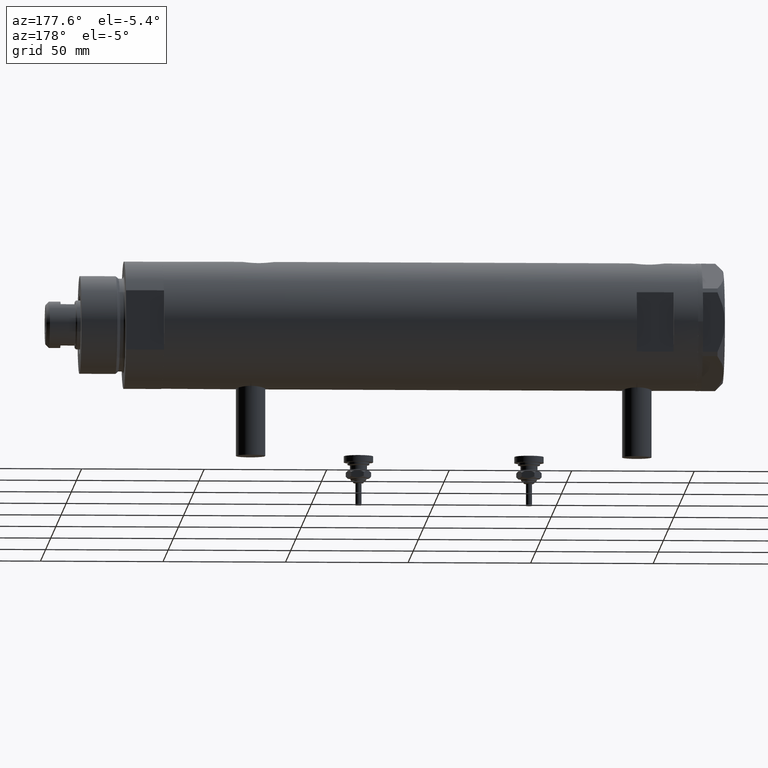
[diagram: clean part render]
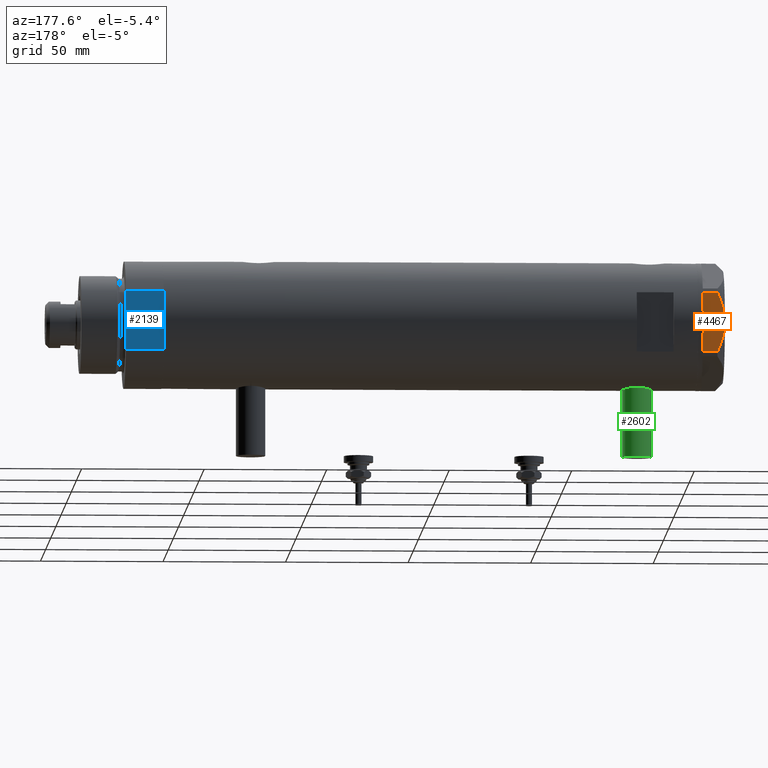
[diagram: same view with three faces highlighted in distinct colors, each labeled with its STEP entity id]
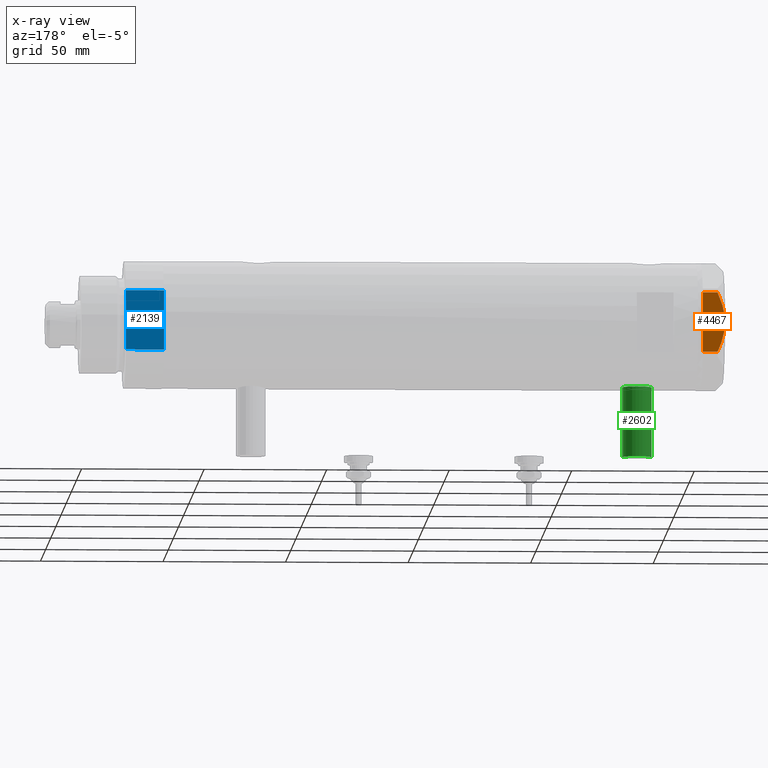
[diagram: x-ray of the same camera — body ghosted, the three highlighted faces saturated]
A machine part, auxiliary view with three faces highlighted in distinct colors.
The next image is the same camera in x-ray (body ghosted, the three faces saturated) — at least one of them is partly hidden behind the body in this view.
Their STEP definitions:

[orange] entity #4467 — the highlighted planar face has unit normal (0, -1, 0).
#68 = ORIENTED_EDGE ( 'NONE', *, *, #5895, .T. ) ;
#179 = CARTESIAN_POINT ( 'NONE',  ( 22.99999999999984368, 11.20155944044832630, 6.421102682632754188 ) ) ;
#208 = CARTESIAN_POINT ( 'NONE',  ( 22.99999999999985079, 9.734726261263462632, 7.028924700095659617 ) ) ;
#278 = CARTESIAN_POINT ( 'NONE',  ( 22.99999999999995026, 2.373657066004705010E-13, 9.000000000000000000 ) ) ;
#309 = CARTESIAN_POINT ( 'NONE',  ( 23.00000000000003197, -8.246028007352183664, 7.571131808646910599 ) ) ;
#346 = CARTESIAN_POINT ( 'NONE',  ( 23.00000000000005684, -10.23890159976104641, 6.840812428290920622 ) ) ;
#495 = VECTOR ( 'NONE', #3101, 1000.000000000000000 ) ;
#586 = AXIS2_PLACEMENT_3D ( 'NONE', #6084, #3039, #1575 ) ;
#864 = B_SPLINE_CURVE_WITH_KNOTS ( 'NONE', 3,
 ( #3326, #2723, #346, #1766, #309, #2276, #4236, #2693, #4294, #278 ),
 .UNSPECIFIED., .F., .F.,
 ( 4, 2, 2, 2, 4 ),
 ( 0.03516523594057417712, 0.03831677594541235687, 0.03989254594783144675, 0.04146831595025053663, 0.04777139595992689614 ),
 .UNSPECIFIED. ) ;
#889 = EDGE_CURVE ( 'NONE', #5630, #2928, #2181, .T. ) ;
#954 = VECTOR ( 'NONE', #2913, 1000.000000000000000 ) ;
#1006 = VERTEX_POINT ( 'NONE', #4799 ) ;
#1141 = VECTOR ( 'NONE', #4019, 1000.000000000000000 ) ;
#1203 = CARTESIAN_POINT ( 'NONE',  ( 22.99999999999993960, 1.063773509315896648, 8.981438083606837708 ) ) ;
#1424 = CARTESIAN_POINT ( 'NONE',  ( 23.00000000000008527, -13.27905619136115867, 0.000000000000000000 ) ) ;
#1550 = CARTESIAN_POINT ( 'NONE',  ( 22.99999999999990763, 4.203926054642127319, 8.641681223122510858 ) ) ;
#1575 = DIRECTION ( 'NONE',  ( 1.032024811306395780E-14, -1.000000000000000000, 0.000000000000000000 ) ) ;
#1631 = EDGE_CURVE ( 'NONE', #2928, #4842, #2435, .T. ) ;
#1747 = EDGE_CURVE ( 'NONE', #3440, #1006, #5073, .T. ) ;
#1761 = DIRECTION ( 'NONE',  ( -1.032024811306395780E-14, 1.000000000000000000, 0.000000000000000000 ) ) ;
#1766 = CARTESIAN_POINT ( 'NONE',  ( 23.00000000000004263, -8.748091966971204059, 7.396818978284578350 ) ) ;
#1896 = VERTEX_POINT ( 'NONE', #4036 ) ;
#1954 = FACE_OUTER_BOUND ( 'NONE', #2202, .T. ) ;
#2013 = CARTESIAN_POINT ( 'NONE',  ( 22.99999999999995026, 2.373657066004705010E-13, 9.000000000000000000 ) ) ;
#2054 = CARTESIAN_POINT ( 'NONE',  ( 22.99999999999987921, 7.253003311474552461, 7.903276810347635184 ) ) ;
#2067 = CARTESIAN_POINT ( 'NONE',  ( 22.99999999999982236, 12.15905619136163729, 9.000000000000000000 ) ) ;
#2084 = CARTESIAN_POINT ( 'NONE',  ( 22.99999999999982236, 12.15905619136164262, 5.983800287807618190 ) ) ;
#2111 = LINE ( 'NONE', #4064, #495 ) ;
#2171 = DIRECTION ( 'NONE',  ( -1.032024811306395780E-14, 1.000000000000000000, 0.000000000000000000 ) ) ;
#2181 = LINE ( 'NONE', #5544, #4501 ) ;
#2202 = EDGE_LOOP ( 'NONE', ( #4359, #5756, #4382, #5193, #5296, #68, #2907 ) ) ;
#2227 = CARTESIAN_POINT ( 'NONE',  ( 23.00000000000007461, -12.12435565298200224, 0.000000000000000000 ) ) ;
#2276 = CARTESIAN_POINT ( 'NONE',  ( 23.00000000000002842, -7.239756182922028493, 7.892186063422852449 ) ) ;
#2320 = EDGE_CURVE ( 'NONE', #5783, #5630, #3575, .T. ) ;
#2435 = LINE ( 'NONE', #1424, #954 ) ;
#2496 = CARTESIAN_POINT ( 'NONE',  ( 22.99999999999983658, 10.22738952213810926, 6.832470313674774864 ) ) ;
#2529 = CARTESIAN_POINT ( 'NONE',  ( 22.99999999999992539, 2.119709279062085727, 8.908535212173203988 ) ) ;
#2693 = CARTESIAN_POINT ( 'NONE',  ( 22.99999999999999289, -4.194757081058811288, 8.703000351525204792 ) ) ;
#2723 = CARTESIAN_POINT ( 'NONE',  ( 23.00000000000006395, -11.20825071633898240, 6.428173306378455187 ) ) ;
#2907 = ORIENTED_EDGE ( 'NONE', *, *, #1747, .F. ) ;
#2913 = DIRECTION ( 'NONE',  ( -1.032024811306395780E-14, 1.000000000000000000, 0.000000000000000000 ) ) ;
#2928 = VERTEX_POINT ( 'NONE', #5574 ) ;
#3007 = CARTESIAN_POINT ( 'NONE',  ( 22.99999999999990052, 5.228918809624284236, 8.433337033849852560 ) ) ;
#3039 = DIRECTION ( 'NONE',  ( -1.000000000000000000, -1.032024811306395780E-14, 0.000000000000000000 ) ) ;
#3042 = CARTESIAN_POINT ( 'NONE',  ( 22.99999999999994671, 0.5295934231899334099, 9.000000000000095923 ) ) ;
#3101 = DIRECTION ( 'NONE',  ( 0.000000000000000000, 0.000000000000000000, -1.000000000000000000 ) ) ;
#3326 = CARTESIAN_POINT ( 'NONE',  ( 23.00000000000007461, -12.15905619136115412, 5.983800287807623519 ) ) ;
#3424 = PLANE ( 'NONE',  #586 ) ;
#3440 = VERTEX_POINT ( 'NONE', #2013 ) ;
#3575 = LINE ( 'NONE', #5532, #5557 ) ;
#3970 = CARTESIAN_POINT ( 'NONE',  ( 22.99999999999992184, 2.643615312305318099, 8.854304560636265364 ) ) ;
#4007 = CARTESIAN_POINT ( 'NONE',  ( 22.99999999999986500, 8.252113629125430450, 7.581642062680224115 ) ) ;
#4019 = DIRECTION ( 'NONE',  ( 0.000000000000000000, 0.000000000000000000, 1.000000000000000000 ) ) ;
#4036 = CARTESIAN_POINT ( 'NONE',  ( 23.00000000000007461, -12.15905619136115412, 5.983800287807623519 ) ) ;
#4064 = CARTESIAN_POINT ( 'NONE',  ( 23.00000000000007461, -12.15905619136115590, 9.000000000000000000 ) ) ;
#4236 = CARTESIAN_POINT ( 'NONE',  ( 23.00000000000002132, -6.734330413511252722, 8.039389741252669808 ) ) ;
#4281 = EDGE_CURVE ( 'NONE', #1896, #3440, #864, .T. ) ;
#4294 = CARTESIAN_POINT ( 'NONE',  ( 22.99999999999997513, -2.122900714017905699, 9.000000000000095923 ) ) ;
#4346 = CARTESIAN_POINT ( 'NONE',  ( 22.99999999999982236, 12.15905619136163729, 0.000000000000000000 ) ) ;
#4359 = ORIENTED_EDGE ( 'NONE', *, *, #4281, .F. ) ;
#4382 = ORIENTED_EDGE ( 'NONE', *, *, #2320, .T. ) ;
#4467 = ADVANCED_FACE ( 'NONE', ( #1954 ), #3424, .F. ) ;
#4501 = VECTOR ( 'NONE', #1761, 1000.000000000000000 ) ;
#4566 = CARTESIAN_POINT ( 'NONE',  ( 23.00000000000007461, -12.15905619136115590, 0.000000000000000000 ) ) ;
#4799 = CARTESIAN_POINT ( 'NONE',  ( 22.99999999999982236, 12.15905619136164262, 5.983800287807618190 ) ) ;
#4842 = VERTEX_POINT ( 'NONE', #4346 ) ;
#4934 = CARTESIAN_POINT ( 'NONE',  ( 22.99999999999995026, 2.373657066004705010E-13, 9.000000000000000000 ) ) ;
#4981 = LINE ( 'NONE', #2067, #1141 ) ;
#5073 = B_SPLINE_CURVE_WITH_KNOTS ( 'NONE', 3,
 ( #4934, #3042, #1203, #2529, #3970, #1550, #3007, #2054, #4007, #208, #2496, #179, #5513, #2084 ),
 .UNSPECIFIED., .F., .F.,
 ( 4, 2, 2, 2, 2, 2, 4 ),
 ( 0.04777139595992689614, 0.04934380568070229067, 0.05091621540147768521, 0.05406103484302848122, 0.05720585428457927030, 0.05877826400535466483, 0.06035067372613005937 ),
 .UNSPECIFIED. ) ;
#5075 = EDGE_CURVE ( 'NONE', #1896, #5783, #2111, .T. ) ;
#5193 = ORIENTED_EDGE ( 'NONE', *, *, #889, .T. ) ;
#5296 = ORIENTED_EDGE ( 'NONE', *, *, #1631, .T. ) ;
#5513 = CARTESIAN_POINT ( 'NONE',  ( 22.99999999999982947, 11.68282849742352525, 6.206372352695418648 ) ) ;
#5532 = CARTESIAN_POINT ( 'NONE',  ( 23.00000000000008527, -13.27905619136115867, 0.000000000000000000 ) ) ;
#5544 = CARTESIAN_POINT ( 'NONE',  ( 23.00000000000008527, -13.27905619136115867, 0.000000000000000000 ) ) ;
#5557 = VECTOR ( 'NONE', #2171, 1000.000000000000000 ) ;
#5574 = CARTESIAN_POINT ( 'NONE',  ( 22.99999999999982592, 12.12435565298247653, 0.000000000000000000 ) ) ;
#5630 = VERTEX_POINT ( 'NONE', #2227 ) ;
#5756 = ORIENTED_EDGE ( 'NONE', *, *, #5075, .T. ) ;
#5783 = VERTEX_POINT ( 'NONE', #4566 ) ;
#5895 = EDGE_CURVE ( 'NONE', #4842, #1006, #4981, .T. ) ;
#6084 = CARTESIAN_POINT ( 'NONE',  ( 23.00000000000008527, -13.27905619136115867, 9.000000000000000000 ) ) ;

[blue] entity #2139 — the highlighted planar face has unit normal (0, -1, -0).
#210 = CARTESIAN_POINT ( 'NONE',  ( -12.12435565298215145, 23.00000000000000355, 0.000000000000000000 ) ) ;
#283 = EDGE_LOOP ( 'NONE', ( #4077, #4529, #4994, #4066 ) ) ;
#312 = VERTEX_POINT ( 'NONE', #2925 ) ;
#328 = VECTOR ( 'NONE', #5240, 1000.000000000000000 ) ;
#337 = DIRECTION ( 'NONE',  ( -0.000000000000000000, -0.000000000000000000, 1.000000000000000000 ) ) ;
#925 = EDGE_CURVE ( 'NONE', #4964, #1258, #4164, .T. ) ;
#1149 = CARTESIAN_POINT ( 'NONE',  ( -12.12435565298214613, 23.00000000000000355, 15.50000000000000000 ) ) ;
#1258 = VERTEX_POINT ( 'NONE', #4528 ) ;
#1429 = CARTESIAN_POINT ( 'NONE',  ( -12.12435565298215145, 23.00000000000000355, 15.50000000000000000 ) ) ;
#1746 = VECTOR ( 'NONE', #337, 1000.000000000000000 ) ;
#2108 = CARTESIAN_POINT ( 'NONE',  ( 12.12435565298214080, 23.00000000000000355, 0.000000000000000000 ) ) ;
#2139 = ADVANCED_FACE ( 'NONE', ( #3322 ), #5855, .F. ) ;
#2158 = VECTOR ( 'NONE', #4270, 1000.000000000000000 ) ;
#2236 = CARTESIAN_POINT ( 'NONE',  ( 12.12435565298215323, 23.00000000000000355, 0.000000000000000000 ) ) ;
#2331 = DIRECTION ( 'NONE',  ( 0.000000000000000000, -1.000000000000000000, 0.000000000000000000 ) ) ;
#2482 = AXIS2_PLACEMENT_3D ( 'NONE', #5286, #2331, #4768 ) ;
#2903 = VECTOR ( 'NONE', #5039, 1000.000000000000000 ) ;
#2925 = CARTESIAN_POINT ( 'NONE',  ( -12.12435565298215145, 23.00000000000000355, 0.000000000000000000 ) ) ;
#3027 = EDGE_CURVE ( 'NONE', #312, #6268, #4590, .T. ) ;
#3274 = LINE ( 'NONE', #5299, #328 ) ;
#3304 = LINE ( 'NONE', #1429, #2158 ) ;
#3322 = FACE_OUTER_BOUND ( 'NONE', #283, .T. ) ;
#4066 = ORIENTED_EDGE ( 'NONE', *, *, #3027, .T. ) ;
#4077 = ORIENTED_EDGE ( 'NONE', *, *, #6171, .T. ) ;
#4164 = LINE ( 'NONE', #2236, #1746 ) ;
#4270 = DIRECTION ( 'NONE',  ( 1.000000000000000000, 0.000000000000000000, 0.000000000000000000 ) ) ;
#4528 = CARTESIAN_POINT ( 'NONE',  ( 12.12435565298214790, 23.00000000000000355, 15.50000000000000000 ) ) ;
#4529 = ORIENTED_EDGE ( 'NONE', *, *, #925, .F. ) ;
#4590 = LINE ( 'NONE', #210, #2903 ) ;
#4768 = DIRECTION ( 'NONE',  ( 0.000000000000000000, -0.000000000000000000, -1.000000000000000000 ) ) ;
#4964 = VERTEX_POINT ( 'NONE', #2108 ) ;
#4994 = ORIENTED_EDGE ( 'NONE', *, *, #6160, .F. ) ;
#5039 = DIRECTION ( 'NONE',  ( -0.000000000000000000, -0.000000000000000000, 1.000000000000000000 ) ) ;
#5240 = DIRECTION ( 'NONE',  ( 1.000000000000000000, 0.000000000000000000, 0.000000000000000000 ) ) ;
#5286 = CARTESIAN_POINT ( 'NONE',  ( -12.12435565298215145, 23.00000000000000355, 0.000000000000000000 ) ) ;
#5299 = CARTESIAN_POINT ( 'NONE',  ( -12.12435565298215145, 23.00000000000000355, 0.000000000000000000 ) ) ;
#5855 = PLANE ( 'NONE',  #2482 ) ;
#6160 = EDGE_CURVE ( 'NONE', #312, #4964, #3274, .T. ) ;
#6171 = EDGE_CURVE ( 'NONE', #6268, #1258, #3304, .T. ) ;
#6268 = VERTEX_POINT ( 'NONE', #1149 ) ;

[green] entity #2602 — the highlighted cylindrical surface (edge-blend (fillet) strip) has radius 6 mm, axis along (0, 0, 1).
#336 = CARTESIAN_POINT ( 'NONE',  ( -24.80000000000000426, 0.000000000000000000, 78.95000000000000284 ) ) ;
#488 = CARTESIAN_POINT ( 'NONE',  ( -24.80000000000000426, 7.347880794884101001E-16, 90.94999999999998863 ) ) ;
#751 = CARTESIAN_POINT ( 'NONE',  ( -53.40000000000000568, 0.000000000000000000, 84.95000000000000284 ) ) ;
#992 = DIRECTION ( 'NONE',  ( 1.000000000000000000, -0.000000000000000000, -0.000000000000000000 ) ) ;
#1018 = EDGE_CURVE ( 'NONE', #1425, #3645, #2298, .T. ) ;
#1133 = EDGE_LOOP ( 'NONE', ( #4137, #1230, #2205, #6191 ) ) ;
#1230 = ORIENTED_EDGE ( 'NONE', *, *, #1018, .T. ) ;
#1257 = CIRCLE ( 'NONE', #5635, 5.999999999999991118 ) ;
#1425 = VERTEX_POINT ( 'NONE', #4651 ) ;
#1498 = FACE_OUTER_BOUND ( 'NONE', #1133, .T. ) ;
#1503 = VERTEX_POINT ( 'NONE', #5199 ) ;
#1779 = DIRECTION ( 'NONE',  ( -1.000000000000000000, 0.000000000000000000, 0.000000000000000000 ) ) ;
#1904 = CARTESIAN_POINT ( 'NONE',  ( -53.40000000000000568, 0.000000000000000000, 84.95000000000000284 ) ) ;
#2052 = CYLINDRICAL_SURFACE ( 'NONE', #2889, 5.999999999999991118 ) ;
#2060 = EDGE_CURVE ( 'NONE', #1425, #1503, #1257, .T. ) ;
#2205 = ORIENTED_EDGE ( 'NONE', *, *, #5598, .T. ) ;
#2298 = LINE ( 'NONE', #5217, #5426 ) ;
#2442 = EDGE_CURVE ( 'NONE', #1503, #4615, #5304, .T. ) ;
#2602 = ADVANCED_FACE ( 'NONE', ( #1498 ), #2052, .T. ) ;
#2718 = DIRECTION ( 'NONE',  ( 0.000000000000000000, 0.000000000000000000, 1.000000000000000000 ) ) ;
#2856 = AXIS2_PLACEMENT_3D ( 'NONE', #6075, #1779, #3188 ) ;
#2889 = AXIS2_PLACEMENT_3D ( 'NONE', #1904, #992, #3377 ) ;
#3188 = DIRECTION ( 'NONE',  ( 0.000000000000000000, 0.000000000000000000, 1.000000000000000000 ) ) ;
#3377 = DIRECTION ( 'NONE',  ( 0.000000000000000000, 0.000000000000000000, -1.000000000000000000 ) ) ;
#3645 = VERTEX_POINT ( 'NONE', #488 ) ;
#4137 = ORIENTED_EDGE ( 'NONE', *, *, #2060, .F. ) ;
#4499 = CIRCLE ( 'NONE', #2856, 5.999999999999991118 ) ;
#4615 = VERTEX_POINT ( 'NONE', #336 ) ;
#4651 = CARTESIAN_POINT ( 'NONE',  ( -53.40000000000000568, 7.347880794884101001E-16, 90.94999999999998863 ) ) ;
#5192 = DIRECTION ( 'NONE',  ( -1.000000000000000000, 0.000000000000000000, 0.000000000000000000 ) ) ;
#5199 = CARTESIAN_POINT ( 'NONE',  ( -53.40000000000000568, 0.000000000000000000, 78.95000000000000284 ) ) ;
#5217 = CARTESIAN_POINT ( 'NONE',  ( -53.40000000000000568, 7.347880794884104945E-16, 90.94999999999998863 ) ) ;
#5304 = LINE ( 'NONE', #6135, #6070 ) ;
#5426 = VECTOR ( 'NONE', #5726, 1000.000000000000000 ) ;
#5598 = EDGE_CURVE ( 'NONE', #3645, #4615, #4499, .T. ) ;
#5635 = AXIS2_PLACEMENT_3D ( 'NONE', #751, #5192, #2718 ) ;
#5652 = DIRECTION ( 'NONE',  ( 1.000000000000000000, -0.000000000000000000, -0.000000000000000000 ) ) ;
#5726 = DIRECTION ( 'NONE',  ( 1.000000000000000000, -0.000000000000000000, -0.000000000000000000 ) ) ;
#6070 = VECTOR ( 'NONE', #5652, 1000.000000000000000 ) ;
#6075 = CARTESIAN_POINT ( 'NONE',  ( -24.80000000000000426, 0.000000000000000000, 84.95000000000000284 ) ) ;
#6135 = CARTESIAN_POINT ( 'NONE',  ( -53.40000000000000568, 0.000000000000000000, 78.95000000000000284 ) ) ;
#6191 = ORIENTED_EDGE ( 'NONE', *, *, #2442, .F. ) ;